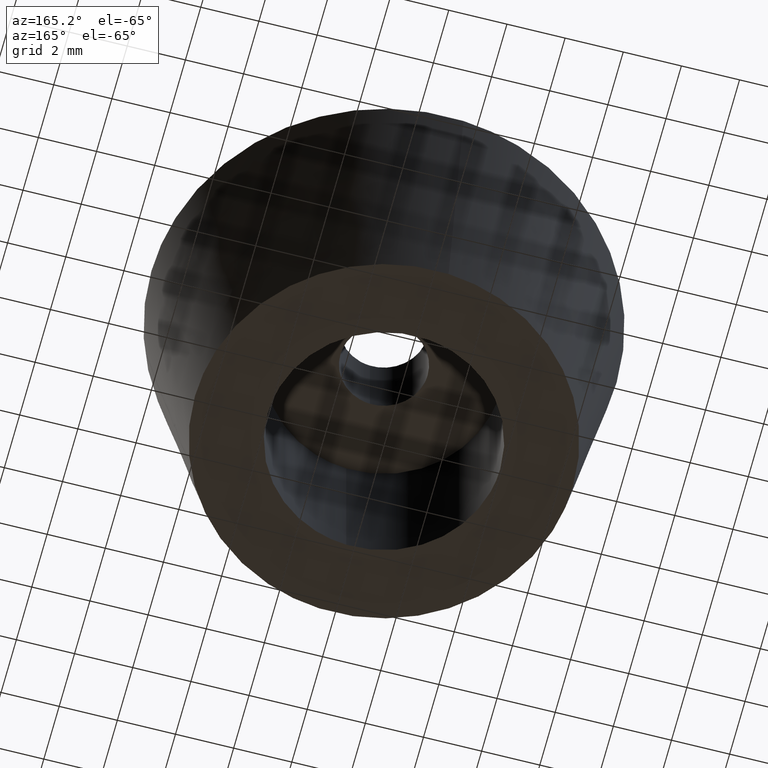
[diagram: clean part render]
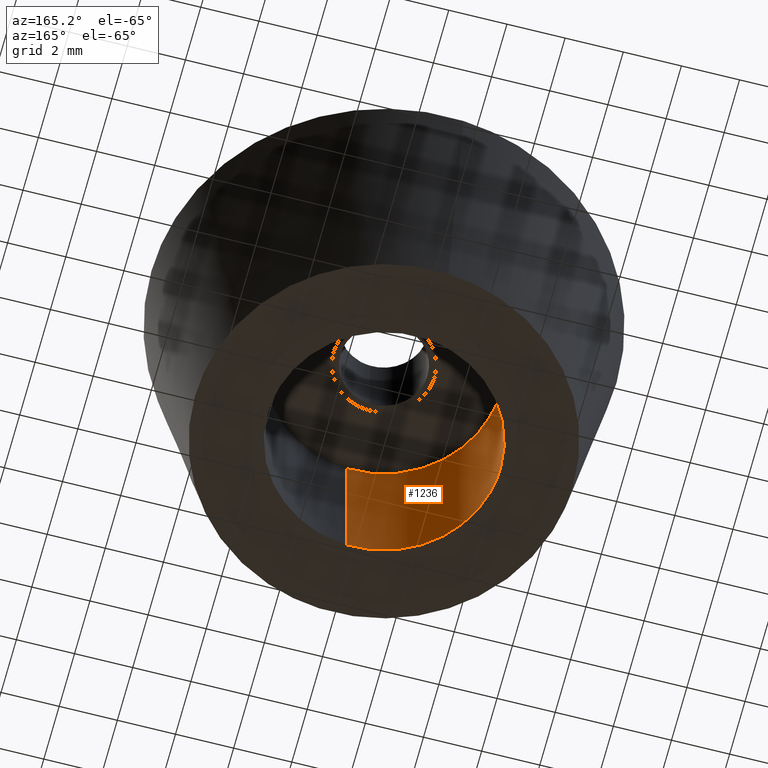
[diagram: same view with one face highlighted and labeled with its STEP entity id]
A machine part, auxiliary view. The second image highlights one B-rep face of the part: STEP entity #1236.
In plain terms, the highlighted face is a freeform B-spline surface patch.
Its self-contained STEP definition (entity closure, byte-faithful):
#1073=CARTESIAN_POINT('',(-0.472135276174555,3.972038303061637,5.999999999999996));
#1074=VERTEX_POINT('',#1073);
#1092=CARTESIAN_POINT('',(-0.472135296181069,3.972038300683576,5.394914E-016));
#1093=VERTEX_POINT('',#1092);
#1094=CARTESIAN_POINT('',(-0.472135276174555,3.972038303061637,5.999999999999996));
#1095=CARTESIAN_POINT('',(-0.472135296181069,3.972038300683576,5.394914E-016));
#1096=QUASI_UNIFORM_CURVE('',1,(#1094,#1095),.UNSPECIFIED.,.F.,.U.);
#1097=EDGE_CURVE('',#1074,#1093,#1096,.T.);
#1116=CARTESIAN_POINT('',(0.244191539836600,-3.992539353828005,-5.134781E-016));
#1117=VERTEX_POINT('',#1116);
#1131=CARTESIAN_POINT('',(0.244191507870781,-3.992539355783076,6.000000000000009));
#1132=VERTEX_POINT('',#1131);
#1133=CARTESIAN_POINT('',(0.244191507870781,-3.992539355783076,6.000000000000009));
#1134=CARTESIAN_POINT('',(0.244191539836600,-3.992539353828005,-5.134781E-016));
#1135=QUASI_UNIFORM_CURVE('',1,(#1133,#1134),.UNSPECIFIED.,.F.,.U.);
#1136=EDGE_CURVE('',#1132,#1117,#1135,.T.);
#1154=CARTESIAN_POINT('',(0.244194158139428,-3.992539193687467,6.150000000000001));
#1155=CARTESIAN_POINT('',(-3.748345035548039,-4.236733351826894,6.150000000000002));
#1156=CARTESIAN_POINT('',(-3.992539193687467,-0.244194158139428,6.150000000000001));
#1157=CARTESIAN_POINT('',(-4.223144786930110,3.526173963358004,6.150000000000001));
#1158=CARTESIAN_POINT('',(-0.472136938627034,3.972038105454666,6.150000000000001));
#1159=CARTESIAN_POINT('',(0.244194158139428,-3.992539193687467,-0.153750000000001));
#1160=CARTESIAN_POINT('',(-3.748345035548039,-4.236733351826894,-0.153750000000000));
#1161=CARTESIAN_POINT('',(-3.992539193687467,-0.244194158139428,-0.153750000000001));
#1162=CARTESIAN_POINT('',(-4.223144786930110,3.526173963358004,-0.153750000000001));
#1163=CARTESIAN_POINT('',(-0.472136938627034,3.972038105454666,-0.153750000000000));
#1171=(BOUNDED_SURFACE()B_SPLINE_SURFACE(2,1,((#1154,#1159),(#1155,#1160),(#1156,#1161),(#1157,#1162),(#1158,#1163)),.UNSPECIFIED.,.F.,.F.,.U.)B_SPLINE_SURFACE_WITH_KNOTS((3,2,3),(2,2),(0.0,6.627416997969518,12.989737316020260),(0.0,6.303750000000004),.UNSPECIFIED.)GEOMETRIC_REPRESENTATION_ITEM()RATIONAL_B_SPLINE_SURFACE(((1.0,1.0),(0.707106781186548,0.707106781186548),(1.0,1.0),(0.718822509939086,0.718822509939086),(0.977505800795127,0.977505800795127)))REPRESENTATION_ITEM('')SURFACE());
#1172=CARTESIAN_POINT('',(-4.0,0.0,6.0));
#1173=VERTEX_POINT('',#1172);
#1174=CARTESIAN_POINT('',(-4.0,0.0,6.0));
#1175=CARTESIAN_POINT('',(-4.0,3.552699601215653,6.0));
#1176=CARTESIAN_POINT('',(-0.472135276174555,3.972038303061638,5.999999999999996));
#1184=(BOUNDED_CURVE()B_SPLINE_CURVE(2,(#1174,#1175,#1176),.UNSPECIFIED.,.F.,.U.)B_SPLINE_CURVE_WITH_KNOTS((3,3),(0.0,0.229562544250081),.UNSPECIFIED.)CURVE()GEOMETRIC_REPRESENTATION_ITEM()RATIONAL_B_SPLINE_CURVE((1.0,0.731050749982353,0.956026892830324))REPRESENTATION_ITEM(''));
#1185=EDGE_CURVE('',#1173,#1074,#1184,.T.);
#1186=ORIENTED_EDGE('',*,*,#1185,.F.);
#1187=CARTESIAN_POINT('',(0.244191507870781,-3.992539355783075,6.000000000000009));
#1188=CARTESIAN_POINT('',(0.122209724344552,-4.0,6.000000000000001));
#1189=CARTESIAN_POINT('',(0.0,-4.0,6.0));
#1190=CARTESIAN_POINT('',(-4.000000000000000,-4.000000000000000,6.0));
#1191=CARTESIAN_POINT('',(-4.0,0.0,6.0));
#1199=(BOUNDED_CURVE()B_SPLINE_CURVE(2,(#1187,#1188,#1189,#1190,#1191),.UNSPECIFIED.,.F.,.U.)B_SPLINE_CURVE_WITH_KNOTS((3,2,3),(0.739333076779450,0.750000000000000,1.0),.UNSPECIFIED.)CURVE()GEOMETRIC_REPRESENTATION_ITEM()RATIONAL_B_SPLINE_CURVE((0.976072287148952,0.987502922092389,1.0,0.707106781186548,1.0))REPRESENTATION_ITEM(''));
#1200=EDGE_CURVE('',#1132,#1173,#1199,.T.);
#1201=ORIENTED_EDGE('',*,*,#1200,.F.);
#1202=ORIENTED_EDGE('',*,*,#1136,.T.);
#1203=CARTESIAN_POINT('',(-4.0,0.0,0.0));
#1204=VERTEX_POINT('',#1203);
#1205=CARTESIAN_POINT('',(0.244191539836600,-3.992539353828005,-5.134781E-016));
#1206=CARTESIAN_POINT('',(0.122209740372274,-4.000000000000000,0.0));
#1207=CARTESIAN_POINT('',(0.0,-4.0,0.0));
#1208=CARTESIAN_POINT('',(-4.000000000000000,-4.000000000000000,0.0));
#1209=CARTESIAN_POINT('',(-4.0,0.0,0.0));
#1217=(BOUNDED_CURVE()B_SPLINE_CURVE(2,(#1205,#1206,#1207,#1208,#1209),.UNSPECIFIED.,.F.,.U.)B_SPLINE_CURVE_WITH_KNOTS((3,2,3),(0.739333075397974,0.750000000000000,1.0),.UNSPECIFIED.)CURVE()GEOMETRIC_REPRESENTATION_ITEM()RATIONAL_B_SPLINE_CURVE((0.976072284188181,0.987502920473888,1.0,0.707106781186548,1.0))REPRESENTATION_ITEM(''));
#1218=EDGE_CURVE('',#1117,#1204,#1217,.T.);
#1219=ORIENTED_EDGE('',*,*,#1218,.T.);
#1220=CARTESIAN_POINT('',(-4.0,0.0,0.0));
#1221=CARTESIAN_POINT('',(-4.000000000000001,3.552699583195312,0.0));
#1222=CARTESIAN_POINT('',(-0.472135296181069,3.972038300683576,5.394914E-016));
#1230=(BOUNDED_CURVE()B_SPLINE_CURVE(2,(#1220,#1221,#1222),.UNSPECIFIED.,.F.,.U.)B_SPLINE_CURVE_WITH_KNOTS((3,3),(0.0,0.229562543398839),.UNSPECIFIED.)CURVE()GEOMETRIC_REPRESENTATION_ITEM()RATIONAL_B_SPLINE_CURVE((1.0,0.731050750979645,0.956026891161853))REPRESENTATION_ITEM(''));
#1231=EDGE_CURVE('',#1204,#1093,#1230,.T.);
#1232=ORIENTED_EDGE('',*,*,#1231,.T.);
#1233=ORIENTED_EDGE('',*,*,#1097,.F.);
#1234=EDGE_LOOP('',(#1186,#1201,#1202,#1219,#1232,#1233));
#1235=FACE_OUTER_BOUND('',#1234,.T.);
#1236=ADVANCED_FACE('',(#1235),#1171,.F.);